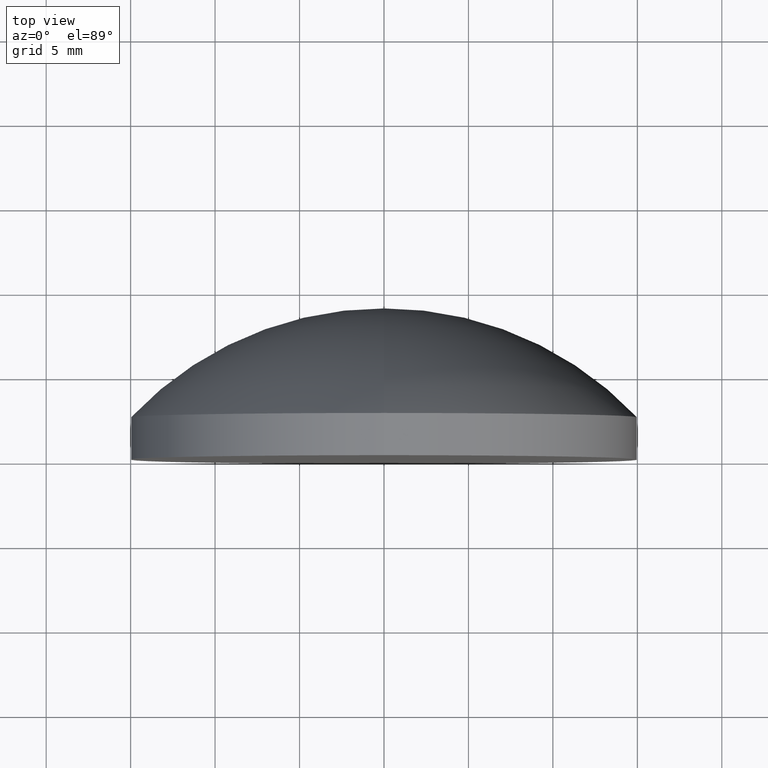
[diagram: clean part render]
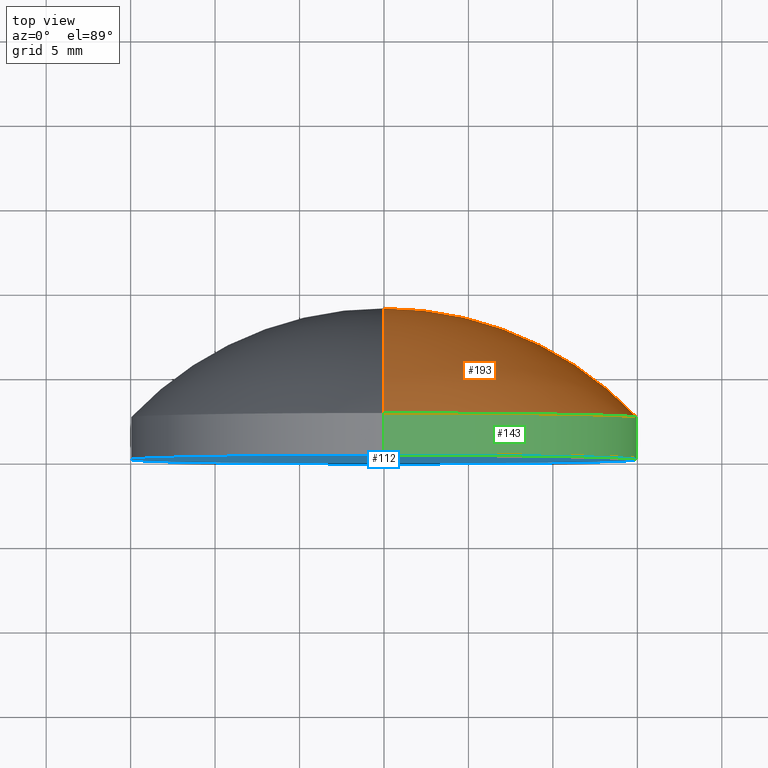
[diagram: same view with three faces highlighted in distinct colors, each labeled with its STEP entity id]
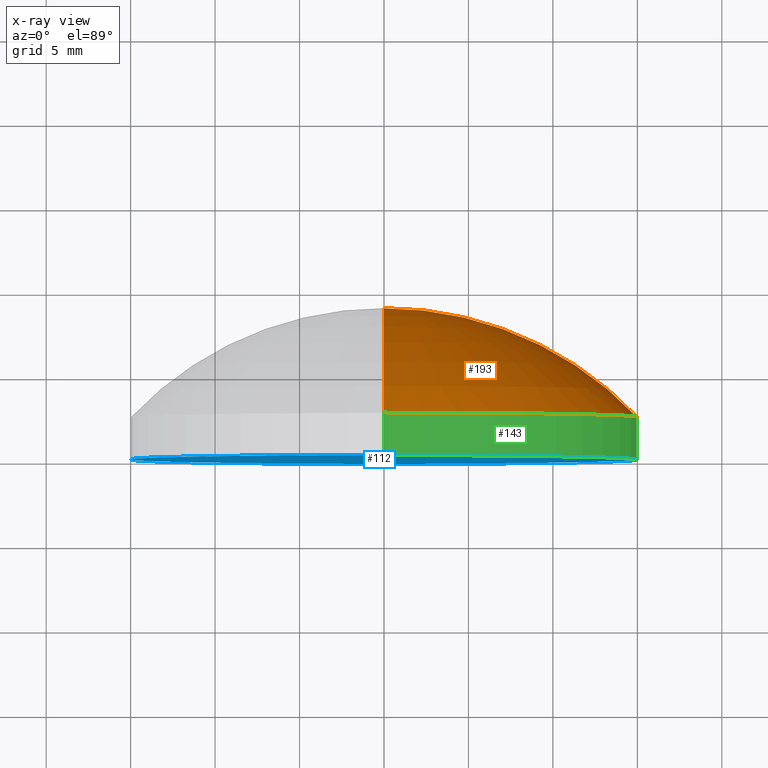
[diagram: x-ray of the same camera — body ghosted, the three highlighted faces saturated]
A machine part, top view with three faces highlighted in distinct colors.
The next image is the same camera in x-ray (body ghosted, the three faces saturated) — at least one of them is partly hidden behind the body in this view.
Their STEP definitions:

[orange] entity #193 — the highlighted toroidal blend (fillet) surface has major radius 0.0013 mm and minor (blend) radius 20.67 mm.
#1 = FACE_OUTER_BOUND ( 'NONE', #139, .T. ) ;
#6 = EDGE_CURVE ( 'NONE', #123, #11, #185, .T. ) ;
#11 = VERTEX_POINT ( 'NONE', #183 ) ;
#13 = AXIS2_PLACEMENT_3D ( 'NONE', #180, #58, #190 ) ;
#14 = DIRECTION ( 'NONE',  ( -1.000000000000000000, 0.000000000000000000, 0.000000000000000000 ) ) ;
#15 = CARTESIAN_POINT ( 'NONE',  ( 1.836970198721029589E-15, 2.499999999999998668, -15.00000000000000000 ) ) ;
#21 = EDGE_CURVE ( 'NONE', #173, #123, #159, .T. ) ;
#26 = AXIS2_PLACEMENT_3D ( 'NONE', #170, #28, #93 ) ;
#28 = DIRECTION ( 'NONE',  ( -0.000000000000000000, 1.000000000000000000, -0.000000000000000000 ) ) ;
#51 = AXIS2_PLACEMENT_3D ( 'NONE', #95, #14, #85 ) ;
#58 = DIRECTION ( 'NONE',  ( -0.000000000000000000, 1.000000000000000000, -0.000000000000000000 ) ) ;
#62 = ORIENTED_EDGE ( 'NONE', *, *, #6, .T. ) ;
#66 = ORIENTED_EDGE ( 'NONE', *, *, #21, .T. ) ;
#73 = CIRCLE ( 'NONE', #51, 20.66999999999999460 ) ;
#77 = ORIENTED_EDGE ( 'NONE', *, *, #86, .F. ) ;
#85 = DIRECTION ( 'NONE',  ( 0.000000000000000000, 0.000000000000000000, 1.000000000000000000 ) ) ;
#86 = EDGE_CURVE ( 'NONE', #173, #11, #73, .T. ) ;
#92 = DIRECTION ( 'NONE',  ( 1.000000000000000000, 0.000000000000000000, 1.224646799147353207E-16 ) ) ;
#93 = DIRECTION ( 'NONE',  ( 0.000000000000000000, 0.000000000000000000, 1.000000000000000000 ) ) ;
#95 = CARTESIAN_POINT ( 'NONE',  ( 0.000000000000000000, -11.71999995591560584, -0.001349981043710993256 ) ) ;
#123 = VERTEX_POINT ( 'NONE', #15 ) ;
#132 = CARTESIAN_POINT ( 'NONE',  ( 0.000000000000000000, 2.499999999999998668, 15.00000000000000000 ) ) ;
#137 = CARTESIAN_POINT ( 'NONE',  ( -1.653249964090270865E-19, -11.71999995591560584, 0.001349981043710993256 ) ) ;
#139 = EDGE_LOOP ( 'NONE', ( #66, #62, #77 ) ) ;
#149 = DIRECTION ( 'NONE',  ( 1.224646799147353454E-16, 0.000000000000000000, -1.000000000000000000 ) ) ;
#159 = CIRCLE ( 'NONE', #26, 15.00000000000000000 ) ;
#170 = CARTESIAN_POINT ( 'NONE',  ( 0.000000000000000000, 2.499999999999998668, 0.000000000000000000 ) ) ;
#173 = VERTEX_POINT ( 'NONE', #132 ) ;
#175 = AXIS2_PLACEMENT_3D ( 'NONE', #137, #92, #149 ) ;
#180 = CARTESIAN_POINT ( 'NONE',  ( 0.000000000000000000, -11.71999995591560584, 0.000000000000000000 ) ) ;
#183 = CARTESIAN_POINT ( 'NONE',  ( 0.000000000000000000, 8.949999999999999289, 0.000000000000000000 ) ) ;
#185 = CIRCLE ( 'NONE', #175, 20.66999999999999460 ) ;
#190 = DIRECTION ( 'NONE',  ( 0.000000000000000000, 0.000000000000000000, 1.000000000000000000 ) ) ;
#192 = TOROIDAL_SURFACE ( 'NONE', #13, -0.001349981043710993256, 20.66999999999999815 ) ;
#193 = ADVANCED_FACE ( 'NONE', ( #1 ), #192, .T. ) ;

[blue] entity #112 — the highlighted planar face has unit normal (0, -1, 0).
#12 = VERTEX_POINT ( 'NONE', #43 ) ;
#19 = DIRECTION ( 'NONE',  ( -0.000000000000000000, 1.000000000000000000, -0.000000000000000000 ) ) ;
#29 = CARTESIAN_POINT ( 'NONE',  ( 0.000000000000000000, -1.734723475976807094E-15, 0.000000000000000000 ) ) ;
#32 = DIRECTION ( 'NONE',  ( 0.000000000000000000, -0.000000000000000000, -1.000000000000000000 ) ) ;
#43 = CARTESIAN_POINT ( 'NONE',  ( 0.000000000000000000, -1.734723475976807094E-15, 15.00000000000000000 ) ) ;
#45 = AXIS2_PLACEMENT_3D ( 'NONE', #128, #161, #70 ) ;
#48 = ORIENTED_EDGE ( 'NONE', *, *, #52, .F. ) ;
#50 = CARTESIAN_POINT ( 'NONE',  ( 0.000000000000000000, -9.184850993605147944E-16, 0.000000000000000000 ) ) ;
#52 = EDGE_CURVE ( 'NONE', #12, #168, #91, .T. ) ;
#69 = AXIS2_PLACEMENT_3D ( 'NONE', #29, #19, #141 ) ;
#70 = DIRECTION ( 'NONE',  ( 0.000000000000000000, 0.000000000000000000, 1.000000000000000000 ) ) ;
#72 = CARTESIAN_POINT ( 'NONE',  ( 1.836970198721029589E-15, -1.734723475976807094E-15, -15.00000000000000000 ) ) ;
#83 = AXIS2_PLACEMENT_3D ( 'NONE', #50, #84, #32 ) ;
#84 = DIRECTION ( 'NONE',  ( 0.000000000000000000, -1.000000000000000000, 0.000000000000000000 ) ) ;
#91 = CIRCLE ( 'NONE', #69, 15.00000000000000000 ) ;
#94 = ORIENTED_EDGE ( 'NONE', *, *, #186, .F. ) ;
#112 = ADVANCED_FACE ( 'NONE', ( #201 ), #154, .T. ) ;
#121 = CIRCLE ( 'NONE', #45, 15.00000000000000000 ) ;
#128 = CARTESIAN_POINT ( 'NONE',  ( 0.000000000000000000, -1.734723475976807094E-15, 0.000000000000000000 ) ) ;
#141 = DIRECTION ( 'NONE',  ( 0.000000000000000000, 0.000000000000000000, 1.000000000000000000 ) ) ;
#154 = PLANE ( 'NONE',  #83 ) ;
#161 = DIRECTION ( 'NONE',  ( -0.000000000000000000, 1.000000000000000000, -0.000000000000000000 ) ) ;
#168 = VERTEX_POINT ( 'NONE', #72 ) ;
#182 = EDGE_LOOP ( 'NONE', ( #48, #94 ) ) ;
#186 = EDGE_CURVE ( 'NONE', #168, #12, #121, .T. ) ;
#201 = FACE_OUTER_BOUND ( 'NONE', #182, .T. ) ;

[green] entity #143 — the highlighted cylindrical surface (partial cylindrical patch) has radius 15 mm, axis along (-0, 1, -0).
#12 = VERTEX_POINT ( 'NONE', #43 ) ;
#15 = CARTESIAN_POINT ( 'NONE',  ( 1.836970198721029589E-15, 2.499999999999998668, -15.00000000000000000 ) ) ;
#19 = DIRECTION ( 'NONE',  ( -0.000000000000000000, 1.000000000000000000, -0.000000000000000000 ) ) ;
#21 = EDGE_CURVE ( 'NONE', #173, #123, #159, .T. ) ;
#26 = AXIS2_PLACEMENT_3D ( 'NONE', #170, #28, #93 ) ;
#28 = DIRECTION ( 'NONE',  ( -0.000000000000000000, 1.000000000000000000, -0.000000000000000000 ) ) ;
#29 = CARTESIAN_POINT ( 'NONE',  ( 0.000000000000000000, -1.734723475976807094E-15, 0.000000000000000000 ) ) ;
#31 = CARTESIAN_POINT ( 'NONE',  ( 0.000000000000000000, 8.949999999999999289, 15.00000000000000000 ) ) ;
#34 = EDGE_CURVE ( 'NONE', #168, #123, #151, .T. ) ;
#40 = VECTOR ( 'NONE', #199, 1000.000000000000000 ) ;
#43 = CARTESIAN_POINT ( 'NONE',  ( 0.000000000000000000, -1.734723475976807094E-15, 15.00000000000000000 ) ) ;
#44 = DIRECTION ( 'NONE',  ( -0.000000000000000000, 1.000000000000000000, -0.000000000000000000 ) ) ;
#47 = ORIENTED_EDGE ( 'NONE', *, *, #52, .T. ) ;
#49 = CARTESIAN_POINT ( 'NONE',  ( 0.000000000000000000, 8.949999999999999289, 0.000000000000000000 ) ) ;
#52 = EDGE_CURVE ( 'NONE', #12, #168, #91, .T. ) ;
#63 = CARTESIAN_POINT ( 'NONE',  ( 1.836970198721029589E-15, 8.949999999999999289, -15.00000000000000000 ) ) ;
#68 = FACE_OUTER_BOUND ( 'NONE', #79, .T. ) ;
#69 = AXIS2_PLACEMENT_3D ( 'NONE', #29, #19, #141 ) ;
#72 = CARTESIAN_POINT ( 'NONE',  ( 1.836970198721029589E-15, -1.734723475976807094E-15, -15.00000000000000000 ) ) ;
#79 = EDGE_LOOP ( 'NONE', ( #47, #172, #82, #184 ) ) ;
#82 = ORIENTED_EDGE ( 'NONE', *, *, #21, .F. ) ;
#91 = CIRCLE ( 'NONE', #69, 15.00000000000000000 ) ;
#93 = DIRECTION ( 'NONE',  ( 0.000000000000000000, 0.000000000000000000, 1.000000000000000000 ) ) ;
#98 = DIRECTION ( 'NONE',  ( -0.000000000000000000, 1.000000000000000000, -0.000000000000000000 ) ) ;
#99 = VECTOR ( 'NONE', #44, 1000.000000000000000 ) ;
#118 = EDGE_CURVE ( 'NONE', #12, #173, #200, .T. ) ;
#123 = VERTEX_POINT ( 'NONE', #15 ) ;
#126 = AXIS2_PLACEMENT_3D ( 'NONE', #49, #98, #162 ) ;
#127 = CYLINDRICAL_SURFACE ( 'NONE', #126, 15.00000000000000000 ) ;
#132 = CARTESIAN_POINT ( 'NONE',  ( 0.000000000000000000, 2.499999999999998668, 15.00000000000000000 ) ) ;
#141 = DIRECTION ( 'NONE',  ( 0.000000000000000000, 0.000000000000000000, 1.000000000000000000 ) ) ;
#143 = ADVANCED_FACE ( 'NONE', ( #68 ), #127, .T. ) ;
#151 = LINE ( 'NONE', #63, #99 ) ;
#159 = CIRCLE ( 'NONE', #26, 15.00000000000000000 ) ;
#162 = DIRECTION ( 'NONE',  ( 0.000000000000000000, 0.000000000000000000, 1.000000000000000000 ) ) ;
#168 = VERTEX_POINT ( 'NONE', #72 ) ;
#170 = CARTESIAN_POINT ( 'NONE',  ( 0.000000000000000000, 2.499999999999998668, 0.000000000000000000 ) ) ;
#172 = ORIENTED_EDGE ( 'NONE', *, *, #34, .T. ) ;
#173 = VERTEX_POINT ( 'NONE', #132 ) ;
#184 = ORIENTED_EDGE ( 'NONE', *, *, #118, .F. ) ;
#199 = DIRECTION ( 'NONE',  ( -0.000000000000000000, 1.000000000000000000, -0.000000000000000000 ) ) ;
#200 = LINE ( 'NONE', #31, #40 ) ;